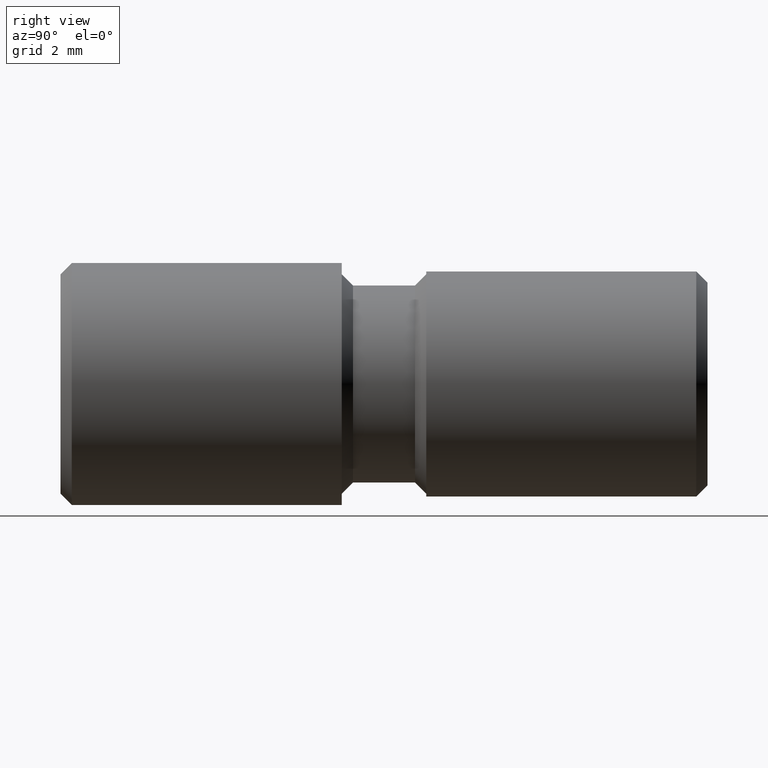
[diagram: clean part render]
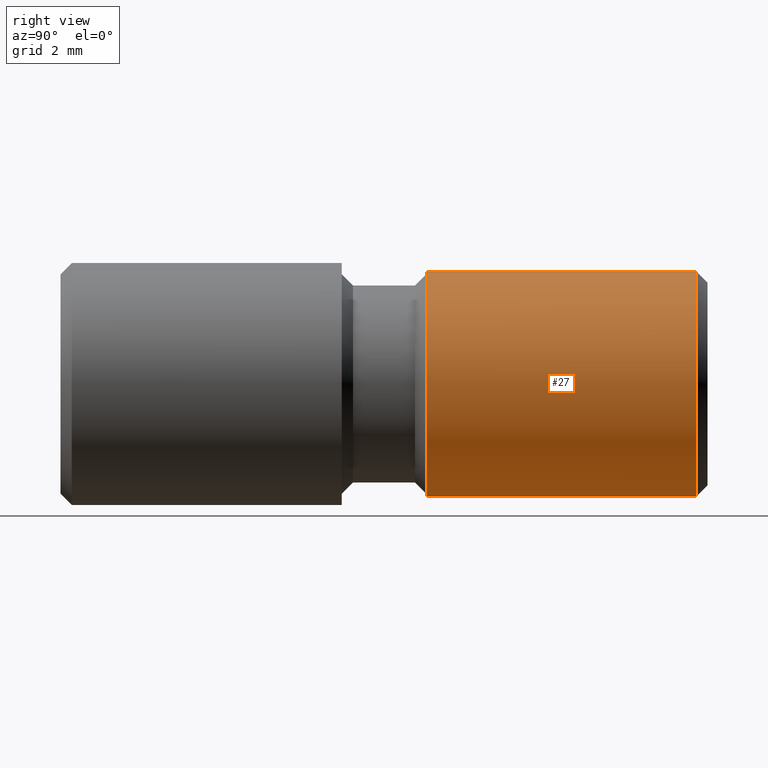
[diagram: same view with one face highlighted and labeled with its STEP entity id]
A machine part, right view. The second image highlights one B-rep face of the part: STEP entity #27.
In plain terms, the highlighted cylindrical surface (partial cylindrical patch) has radius 2 mm, axis along (-0, -1, -0).
Its self-contained STEP definition (entity closure, byte-faithful):
#1 = EDGE_CURVE ( 'NONE', #518, #161, #948, .T. ) ;
#27 = ADVANCED_FACE ( 'NONE', ( #139 ), #116, .T. ) ;
#42 = EDGE_LOOP ( 'NONE', ( #718, #466, #865, #938 ) ) ;
#45 = VECTOR ( 'NONE', #445, 1000.000000000000000 ) ;
#62 = DIRECTION ( 'NONE',  ( 0.0000000000000000000, 0.0000000000000000000, 1.000000000000000000 ) ) ;
#79 = CIRCLE ( 'NONE', #787, 2.000000000000000000 ) ;
#80 = DIRECTION ( 'NONE',  ( -0.0000000000000000000, -1.000000000000000000, -0.0000000000000000000 ) ) ;
#116 = CYLINDRICAL_SURFACE ( 'NONE', #157, 2.000000000000000000 ) ;
#139 = FACE_OUTER_BOUND ( 'NONE', #42, .T. ) ;
#141 = CARTESIAN_POINT ( 'NONE',  ( 0.0000000000000000000, 6.500000000000000900, 0.0000000000000000000 ) ) ;
#157 = AXIS2_PLACEMENT_3D ( 'NONE', #590, #451, #307 ) ;
#161 = VERTEX_POINT ( 'NONE', #253 ) ;
#184 = VERTEX_POINT ( 'NONE', #479 ) ;
#219 = CARTESIAN_POINT ( 'NONE',  ( 2.449293598294706400E-016, 11.50000000000000000, 2.000000000000000000 ) ) ;
#253 = CARTESIAN_POINT ( 'NONE',  ( 0.0000000000000000000, 6.500000000000000900, -2.000000000000000000 ) ) ;
#258 = CIRCLE ( 'NONE', #739, 2.000000000000000000 ) ;
#307 = DIRECTION ( 'NONE',  ( 0.0000000000000000000, 0.0000000000000000000, -1.000000000000000000 ) ) ;
#317 = CARTESIAN_POINT ( 'NONE',  ( 0.0000000000000000000, 11.29999999999999500, -2.000000000000000000 ) ) ;
#366 = DIRECTION ( 'NONE',  ( 0.0000000000000000000, 1.000000000000000000, 0.0000000000000000000 ) ) ;
#376 = DIRECTION ( 'NONE',  ( 0.0000000000000000000, 0.0000000000000000000, 1.000000000000000000 ) ) ;
#432 = EDGE_CURVE ( 'NONE', #518, #688, #258, .T. ) ;
#445 = DIRECTION ( 'NONE',  ( -0.0000000000000000000, -1.000000000000000000, -0.0000000000000000000 ) ) ;
#451 = DIRECTION ( 'NONE',  ( -0.0000000000000000000, -1.000000000000000000, -0.0000000000000000000 ) ) ;
#466 = ORIENTED_EDGE ( 'NONE', *, *, #794, .T. ) ;
#479 = CARTESIAN_POINT ( 'NONE',  ( 2.449293598294706400E-016, 6.500000000000000900, 2.000000000000000000 ) ) ;
#482 = EDGE_CURVE ( 'NONE', #184, #161, #79, .T. ) ;
#500 = CARTESIAN_POINT ( 'NONE',  ( 0.0000000000000000000, 11.29999999999999500, 0.0000000000000000000 ) ) ;
#518 = VERTEX_POINT ( 'NONE', #317 ) ;
#520 = CARTESIAN_POINT ( 'NONE',  ( 0.0000000000000000000, 11.50000000000000000, -2.000000000000000000 ) ) ;
#526 = CARTESIAN_POINT ( 'NONE',  ( 2.449293598294706400E-016, 11.29999999999999500, 2.000000000000000000 ) ) ;
#590 = CARTESIAN_POINT ( 'NONE',  ( 0.0000000000000000000, 11.50000000000000000, 0.0000000000000000000 ) ) ;
#688 = VERTEX_POINT ( 'NONE', #526 ) ;
#712 = DIRECTION ( 'NONE',  ( 0.0000000000000000000, -1.000000000000000000, 0.0000000000000000000 ) ) ;
#718 = ORIENTED_EDGE ( 'NONE', *, *, #432, .T. ) ;
#738 = LINE ( 'NONE', #219, #45 ) ;
#739 = AXIS2_PLACEMENT_3D ( 'NONE', #500, #712, #62 ) ;
#787 = AXIS2_PLACEMENT_3D ( 'NONE', #141, #366, #376 ) ;
#794 = EDGE_CURVE ( 'NONE', #688, #184, #738, .T. ) ;
#865 = ORIENTED_EDGE ( 'NONE', *, *, #482, .T. ) ;
#887 = VECTOR ( 'NONE', #80, 1000.000000000000000 ) ;
#938 = ORIENTED_EDGE ( 'NONE', *, *, #1, .F. ) ;
#948 = LINE ( 'NONE', #520, #887 ) ;